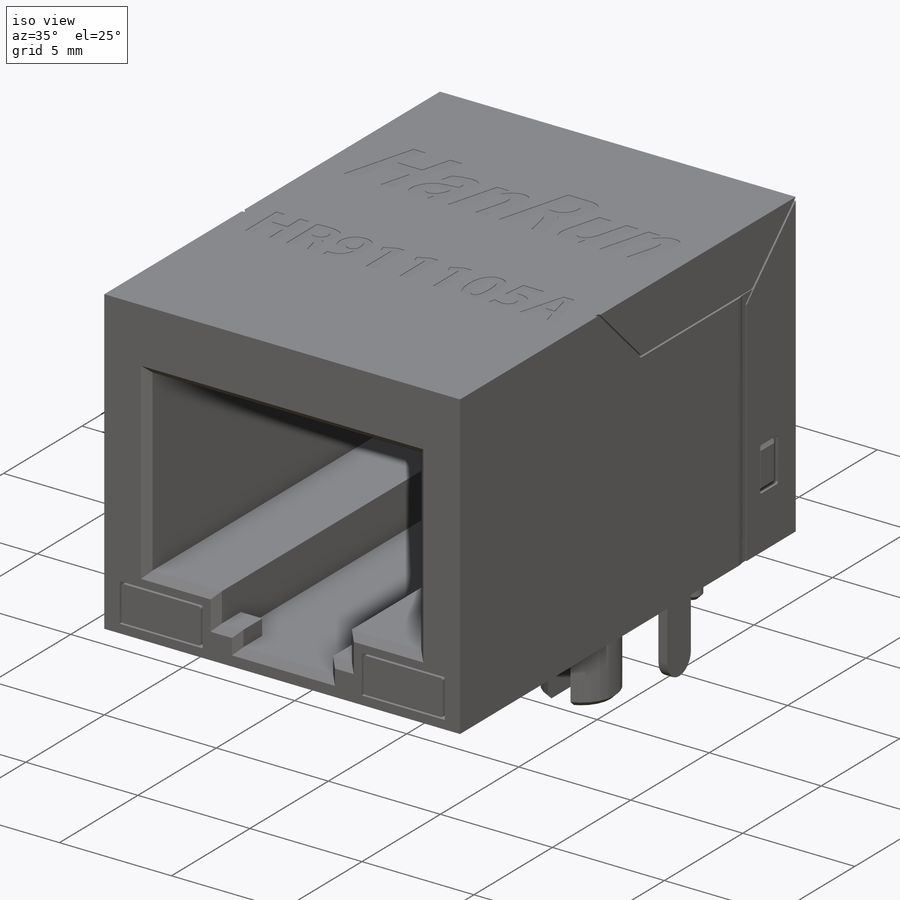
[diagram: iso view]
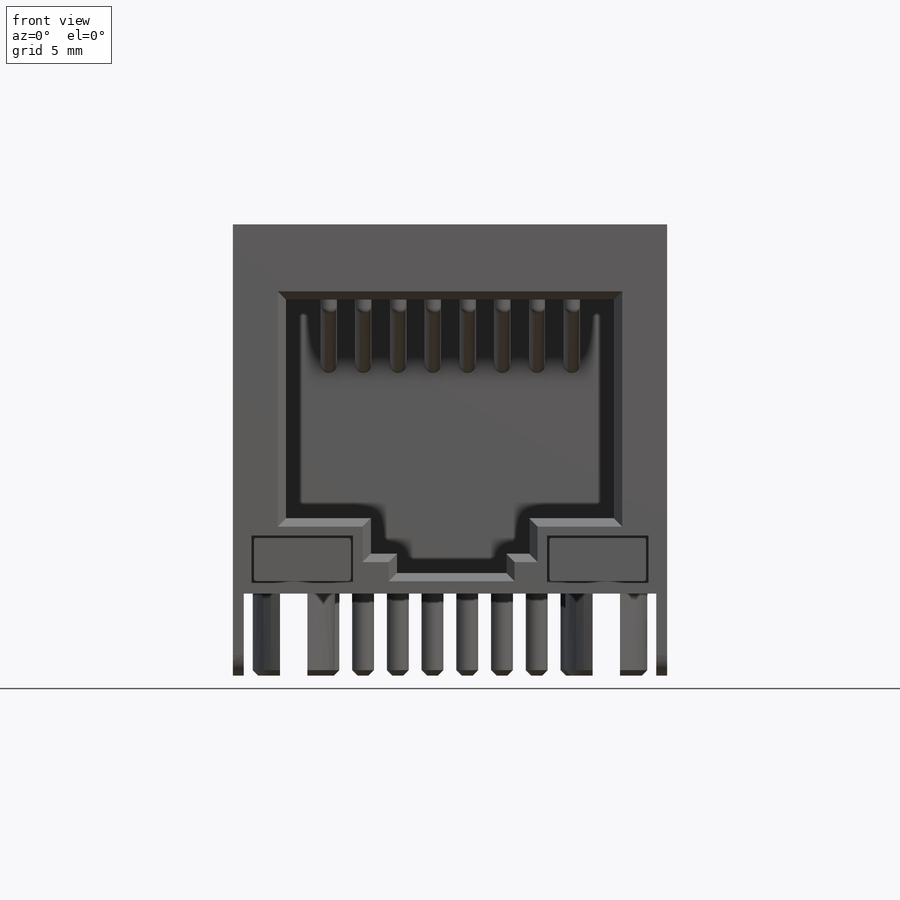
[diagram: front view]
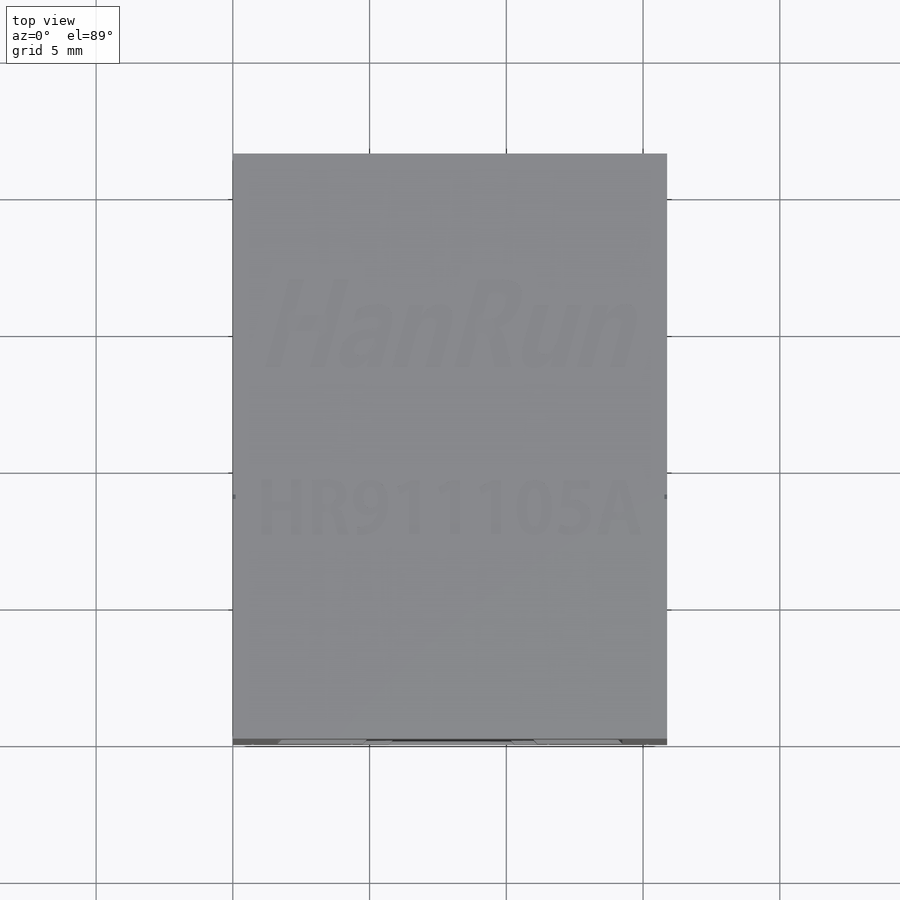
[diagram: top view]
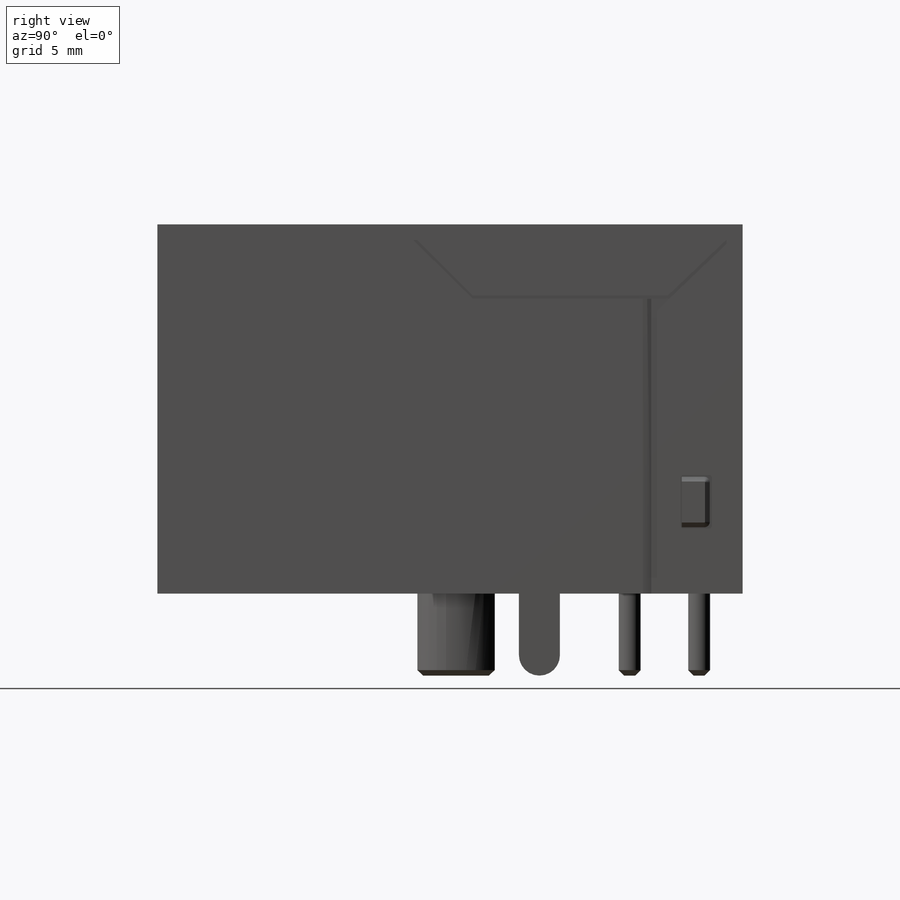
[diagram: right view]
SOLIDWORKS PART (.sldprt)
format: sldprt  version: not decoded by parser v0  size: 1,283,072 bytes
history: native  units: mm
features: sketch x30, revolve x12, extrude x11, plane x7, cut_extrude x7, chamfer x5, mirror x5, fillet x3, material x1, pattern_linear x1 (+12 scaffold rows collapsed)
feature tree (94):
  scaffold x12  (default folders/planes/origin — collapsed)
  material  "Material <not specified>"
  sketch  "草图1"  dims[D1=15.88mm D2=21.4mm]
  extrude  "凸台-拉伸1"  Depth=13.5mm
  sketch  "草图2"  dims[c1.D1=1.5mm c1.D2=1.725mm c1.D3=2.225mm c1.D4=~9.065786mm c1.D5=10.48mm c1.D6=~11.894214mm c2.D4=~9.065786mm]
  extrude  "凸台-拉伸2"  Depth=3mm
  sketch  "草图3"  dims[c1.D1=1.5mm c1.D2=2.225mm c1.D3=2.725mm c1.D4=~9.065786mm c1.D5=10.48mm c1.D6=~11.894214mm c2.D4=~9.065786mm]
  extrude  "凸台-拉伸3"  Depth=3mm
  sketch  "草图4"  dims[c1.D1=1.5mm c1.D2=13.655mm c1.D3=14.155mm c1.D4=~9.065786mm c1.D5=10.48mm c1.D6=~11.894214mm c2.D4=~9.065786mm]
  extrude  "凸台-拉伸4"  Depth=3mm
  plane  "基准面1"
  sketch  "草图5"  dims[D1=0.75mm D2=2.25mm]
  extrude  "凸台-拉伸5"  Depth=0.4mm
  plane  "基准面2"  Offset=15.88mm
  sketch  "草图6"  dims[D1=0.75mm D2=2.25mm]
  extrude  "凸台-拉伸6"  Depth=0.4mm
  sketch  "草图7"  dims[c1.D1=1.5mm c1.D2=13.155mm c1.D3=13.655mm c1.D4=~9.505786mm c1.D5=10.92mm c1.D6=~12.334214mm c2.D4=~9.505786mm]
  extrude  "凸台-拉伸7"  Depth=3mm
  sketch  "草图8"  dims[D1=1.94mm D2=~5.040183mm D3=~10.839817mm D4=13.94mm D5=2.75mm D6=10.75mm D7=12.75mm]
  cut_extrude  "切除-拉伸1"  Depth=15mm
  plane  "基准面3"  Offset=6.02mm
  sketch  "草图9"  dims[D1=0.5mm D2=3.0mm]
  revolve  "旋转1"  Angle=360deg
  sketch  "草图10"  dims[D1=0.5mm D2=3.0mm]
  revolve  "旋转2"  Angle=360deg
  sketch  "草图11"  dims[D1=0.5mm D2=3.0mm]
  revolve  "旋转3"  Angle=360deg
  sketch  "草图12"  dims[D1=0.5mm D2=3.0mm]
  revolve  "旋转4"  Angle=360deg
  plane  "基准面4"  Offset=19.81mm
  sketch  "草图13"  dims[D1=0.4mm D2=3.0mm]
  revolve  "旋转5"  Angle=360deg
  sketch  "草图14"  dims[D1=0.4mm D2=3.0mm]
  revolve  "旋转6"  Angle=360deg
  sketch  "草图15"  dims[D1=0.4mm D2=3.0mm]
  revolve  "旋转7"  Angle=360deg
  sketch  "草图16"  dims[D1=0.4mm D2=3.0mm]
  revolve  "旋转8"  Angle=360deg
  plane  "基准面5"  Offset=17.27mm
  sketch  "草图17"  dims[D1=0.4mm D2=3.0mm]
  revolve  "旋转9"  Angle=360deg
  sketch  "草图18"  dims[D1=0.4mm D2=3.0mm]
  revolve  "旋转10"  Angle=360deg
  sketch  "草图19"  dims[D1=0.4mm D2=3.0mm]
  revolve  "旋转11"  Angle=360deg
  sketch  "草图20"  dims[D1=0.4mm D2=3.0mm]
  revolve  "旋转12"  Angle=360deg
  chamfer  "倒角1"  Distance=0.2mm Angle=45deg
  chamfer  "倒角2"  Distance=0.3mm Angle=45deg
  sketch  "草图21"  dims[D1=~0.163475mm]
  cut_extrude  "切除-拉伸2"  Depth=0.2mm
  plane  "基准面6"  Offset=7.94mm
  sketch  "草图22"  dims[D1=~0.655813mm]
  cut_extrude  "切除-拉伸3"  Depth=0.2mm
  sketch  "草图23"  dims[c1.D1=0.1mm c1.D2=0.2mm c2.D1=~2.508856mm c2.D2=~1.254428mm c3.D1=~1.912565mm c3.D2=~0.80159mm]
  cut_extrude  "切除-拉伸7"  Depth=0.2mm
  chamfer  "倒角4"  Distance=0.1mm Angle=60deg
  mirror  "镜向3"
  mirror  "镜向5"
  sketch  "草图24"  dims[D1=~1.726589mm D2=~3.70585mm]
  cut_extrude  "切除-拉伸8"  Depth=5mm
  sketch  "草图25"  dims[D1=~1.581581mm D2=~3.539398mm]
  extrude  "凸台-拉伸8"  Depth=2mm
  mirror  "镜向7"
  mirror  "镜向9"
  sketch  "草图27"  dims[D1=1.0mm D2=~6.399633mm]
  extrude  "凸台-拉伸9"  Depth=1.5mm
  sketch  "草图30"  dims[D1=4.0mm]
  cut_extrude  "切除-拉伸10"  Depth=1.5mm
  chamfer  "倒角5"  Distance=0.3mm Angle=45deg
  plane  "基准面7"  Offset=4.45mm
  sketch  "草图32"  dims[D1=~0.478793mm]
  extrude  "凸台-拉伸10"  Depth=0.6mm
  pattern_linear  "阵列(线性)1"  Count1=8 Count2=1 Spacing1=1.27mm Spacing2=10mm
  sketch  "草图34"  dims[c1.D1=~4.80583mm c1.D2=~0.446577mm c2.D1=10.78mm c2.D2=~0.895446mm]
  extrude  "凸台-拉伸15"  Depth=0.05mm
  mirror  "镜向10"
  fillet  "圆角2"  Radius=1mm
  fillet  "圆角3"  Radius=1mm
  chamfer  "倒角6"  Distance=0.2mm Angle=45deg
  sketch  "草图40"
  cut_extrude  "切除-拉伸11"  Depth=0.03mm
  fillet  "圆角4"  Radius=0.3mm
decode coverage: 68 of 74 modeling features carry decoded parameters
note: ~ marks probable driven/reference dimensions
note: suppression state not decoded; provenance and decode notes live in map.json
